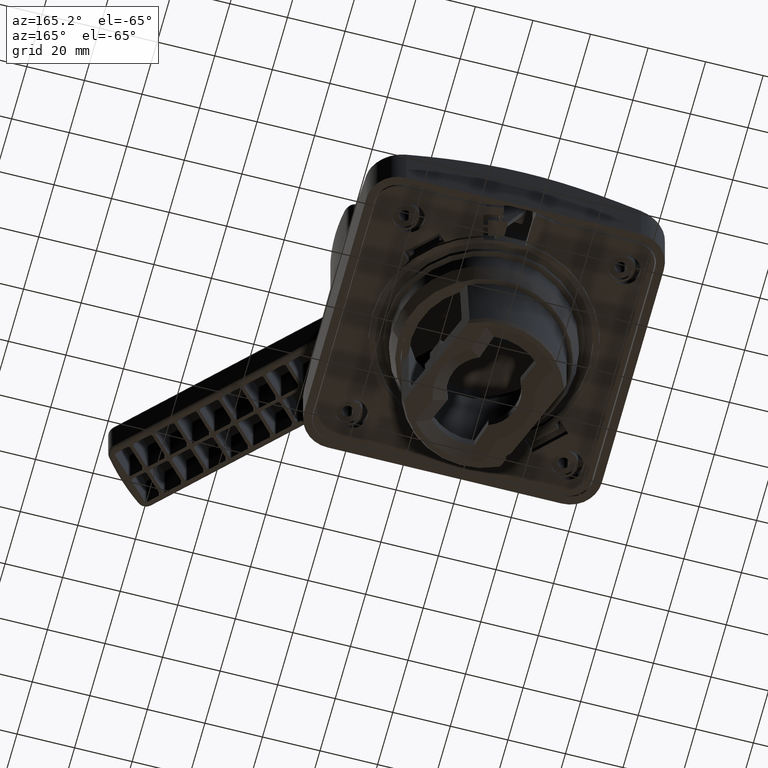
[diagram: clean part render]
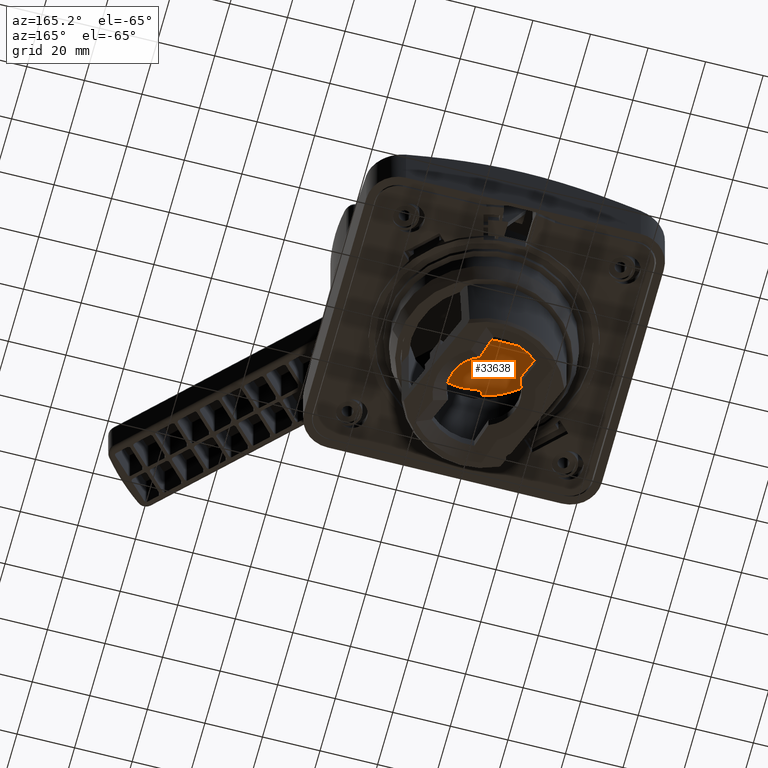
[diagram: same view with one face highlighted and labeled with its STEP entity id]
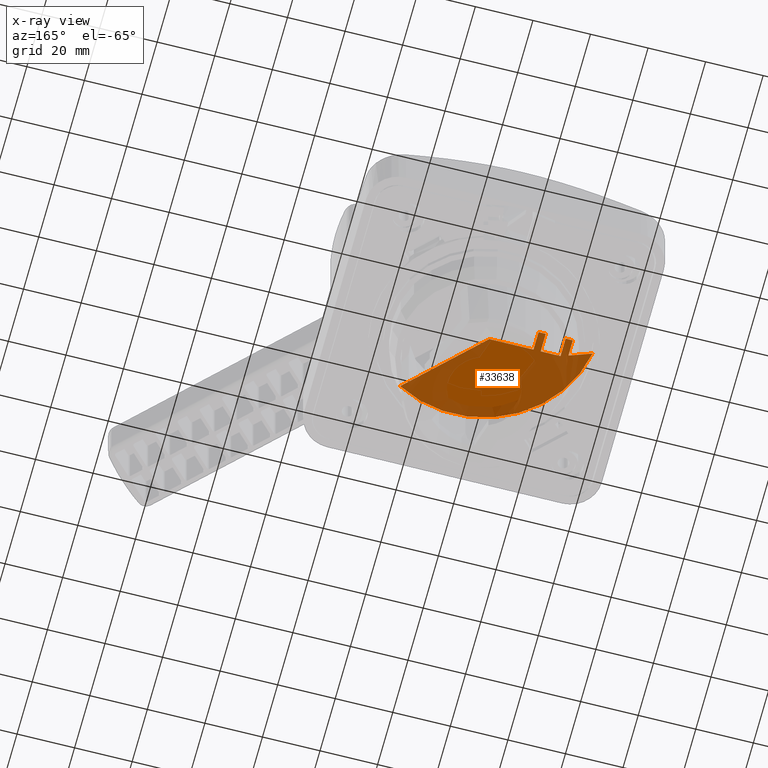
[diagram: x-ray of the same camera — body ghosted, the highlighted face saturated]
A machine part, auxiliary view. The second image highlights one B-rep face of the part: STEP entity #33638.
The next image is the same camera in x-ray: the body ghosted, the highlighted face saturated — about 58% of this face is hidden behind the body in this view.
In plain terms, the highlighted planar face has unit normal (0, 0, 1).
Its self-contained STEP definition (entity closure, byte-faithful):
#22526=DIRECTION('',(1.E0,0.E0,0.E0));
#22527=VECTOR('',#22526,6.029861479260E-1);
#22528=CARTESIAN_POINT('',(-7.8E-1,-3.915E-1,9.56E-1));
#22529=LINE('',#22528,#22527);
#22568=DIRECTION('',(0.E0,-1.E0,0.E0));
#22569=VECTOR('',#22568,2.635E-1);
#22570=CARTESIAN_POINT('',(-7.8E-1,-1.28E-1,9.56E-1));
#22571=LINE('',#22570,#22569);
#22758=DIRECTION('',(0.E0,1.E0,0.E0));
#22759=VECTOR('',#22758,2.635E-1);
#22760=CARTESIAN_POINT('',(-8.78E-1,-3.915E-1,9.56E-1));
#22761=LINE('',#22760,#22759);
#23698=DIRECTION('',(-9.396926207859E-1,3.420201433256E-1,0.E0));
#23699=VECTOR('',#23698,3.217870016347E-1);
#23700=CARTESIAN_POINT('',(-1.248E0,-3.574826859686E-1,9.56E-1));
#23701=LINE('',#23700,#23699);
#23705=CARTESIAN_POINT('',(0.E0,0.E0,9.56E-1));
#23706=DIRECTION('',(0.E0,0.E0,1.E0));
#23707=DIRECTION('',(-9.875037394274E-1,-1.575955729613E-1,0.E0));
#23708=AXIS2_PLACEMENT_3D('',#23705,#23706,#23707);
#23713=DIRECTION('',(-7.071067811865E-1,7.071067811866E-1,0.E0));
#23714=VECTOR('',#23713,1.365996749133E0);
#23715=CARTESIAN_POINT('',(7.888917123165E-1,-1.357405564391E0,9.56E-1));
#23716=LINE('',#23715,#23714);
#23720=DIRECTION('',(4.160626746839E-14,1.E0,0.E0));
#23721=VECTOR('',#23720,2.294826859686E-1);
#23722=CARTESIAN_POINT('',(-1.248E0,-3.574826859686E-1,9.56E-1));
#23723=LINE('',#23722,#23721);
#23727=DIRECTION('',(1.E0,0.E0,0.E0));
#23728=VECTOR('',#23727,9.8E-2);
#23729=CARTESIAN_POINT('',(-1.248E0,-1.28E-1,9.56E-1));
#23730=LINE('',#23729,#23728);
#23748=DIRECTION('',(0.E0,-1.E0,0.E0));
#23749=VECTOR('',#23748,2.635E-1);
#23750=CARTESIAN_POINT('',(-1.15E0,-1.28E-1,9.56E-1));
#23751=LINE('',#23750,#23749);
#23762=DIRECTION('',(1.E0,0.E0,0.E0));
#23763=VECTOR('',#23762,2.72E-1);
#23764=CARTESIAN_POINT('',(-1.15E0,-3.915E-1,9.56E-1));
#23765=LINE('',#23764,#23763);
#23971=DIRECTION('',(1.E0,0.E0,0.E0));
#23972=VECTOR('',#23971,9.8E-2);
#23973=CARTESIAN_POINT('',(-8.78E-1,-1.28E-1,9.56E-1));
#23974=LINE('',#23973,#23972);
#26298=CARTESIAN_POINT('',(-1.550380870901E0,-2.474250495492E-1,9.56E-1));
#26299=CARTESIAN_POINT('',(7.888917123165E-1,-1.357405564391E0,9.56E-1));
#26300=VERTEX_POINT('',#26298);
#26301=VERTEX_POINT('',#26299);
#26358=CARTESIAN_POINT('',(-1.248E0,-3.574826859686E-1,9.56E-1));
#26359=CARTESIAN_POINT('',(-1.248E0,-1.28E-1,9.56E-1));
#26360=VERTEX_POINT('',#26358);
#26361=VERTEX_POINT('',#26359);
#26406=CARTESIAN_POINT('',(-1.770138520740E-1,-3.915E-1,9.56E-1));
#26407=VERTEX_POINT('',#26406);
#26456=CARTESIAN_POINT('',(-7.8E-1,-3.915E-1,9.56E-1));
#26457=VERTEX_POINT('',#26456);
#26462=CARTESIAN_POINT('',(-7.8E-1,-1.28E-1,9.56E-1));
#26463=VERTEX_POINT('',#26462);
#26472=CARTESIAN_POINT('',(-8.78E-1,-3.915E-1,9.56E-1));
#26473=CARTESIAN_POINT('',(-8.78E-1,-1.28E-1,9.56E-1));
#26474=VERTEX_POINT('',#26472);
#26475=VERTEX_POINT('',#26473);
#26506=CARTESIAN_POINT('',(-1.15E0,-1.28E-1,9.56E-1));
#26507=VERTEX_POINT('',#26506);
#26510=CARTESIAN_POINT('',(-1.15E0,-3.915E-1,9.56E-1));
#26511=VERTEX_POINT('',#26510);
#33613=CARTESIAN_POINT('',(-3.807445792923E-1,-8.491920704658E-1,9.56E-1));
#33614=DIRECTION('',(0.E0,0.E0,1.E0));
#33615=DIRECTION('',(0.E0,-1.E0,0.E0));
#33616=AXIS2_PLACEMENT_3D('',#33613,#33614,#33615);
#33617=PLANE('',#33616);
#33619=ORIENTED_EDGE('',*,*,#33618,.F.);
#33621=ORIENTED_EDGE('',*,*,#33620,.T.);
#33623=ORIENTED_EDGE('',*,*,#33622,.T.);
#33624=ORIENTED_EDGE('',*,*,#33602,.T.);
#33625=ORIENTED_EDGE('',*,*,#32743,.F.);
#33626=ORIENTED_EDGE('',*,*,#32767,.F.);
#33628=ORIENTED_EDGE('',*,*,#33627,.F.);
#33629=ORIENTED_EDGE('',*,*,#32900,.F.);
#33631=ORIENTED_EDGE('',*,*,#33630,.F.);
#33633=ORIENTED_EDGE('',*,*,#33632,.F.);
#33635=ORIENTED_EDGE('',*,*,#33634,.F.);
#33636=EDGE_LOOP('',(#33619,#33621,#33623,#33624,#33625,#33626,#33628,#33629,
#33631,#33633,#33635));
#33637=FACE_OUTER_BOUND('',#33636,.F.);
#33638=ADVANCED_FACE('',(#33637),#33617,.F.);
#23709=CIRCLE('',#23708,1.57E0);
#32743=EDGE_CURVE('',#26457,#26407,#22529,.T.);
#32767=EDGE_CURVE('',#26463,#26457,#22571,.T.);
#32900=EDGE_CURVE('',#26474,#26475,#22761,.T.);
#33602=EDGE_CURVE('',#26301,#26407,#23716,.T.);
#33618=EDGE_CURVE('',#26360,#26361,#23723,.T.);
#33620=EDGE_CURVE('',#26360,#26300,#23701,.T.);
#33622=EDGE_CURVE('',#26300,#26301,#23709,.T.);
#33627=EDGE_CURVE('',#26475,#26463,#23974,.T.);
#33630=EDGE_CURVE('',#26511,#26474,#23765,.T.);
#33632=EDGE_CURVE('',#26507,#26511,#23751,.T.);
#33634=EDGE_CURVE('',#26361,#26507,#23730,.T.);